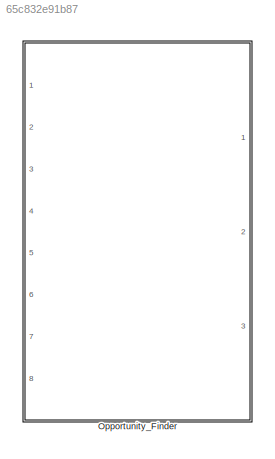
MODEL slx_65c832e91b87
KIND model
CONFIG AbsTol = auto
CONFIG EnableMultiTasking = off
CONFIG FixedStep = 0.001
CONFIG MaxStep = auto
CONFIG MinStep = auto
CONFIG PostLoadFcn = , if any(exist('dsrtsu_mdlpostloadfcn', 'file') == [2, 3, 6]), try dsrtsu_mdlpostloadfcn('Execute', bdroot); catch fprintf('Error in PostLoadFcn (dsrtsu_mdlpostloadfcn) for model "%s":\n %s\n', bdroot, lasterr); end, end, \n
CONFIG RelTol = 1e-3
CONFIG SampleTimeConstraint = Unconstrained
CONFIG Solver = ode1
CONFIG SolverName = ode1
CONFIG StartTime = 0.0
CONFIG StopTime = Inf
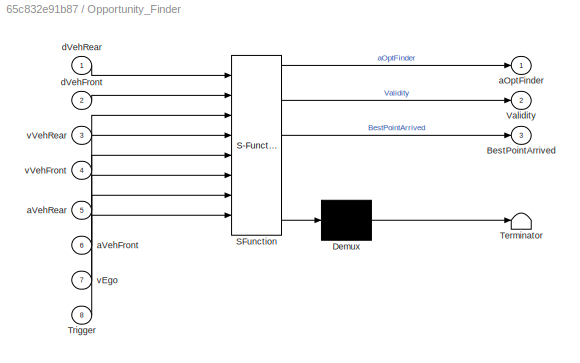
BLOCK [SubSystem] Opportunity_Finder
  ErrorFcn = Stateflow.Translate.translate
  PermitHierarchicalResolution = ExplicitOnly
  Ports = [8, 3]
  RequestExecContextInheritance = off
  SFBlockType = MATLAB Function
  TreatAsAtomicUnit = on
BLOCK [Demux] Opportunity_Finder/ Demux 
  Outputs = 1
  Ports = [1, 1]
BLOCK [S-Function] Opportunity_Finder/ SFunction 
  EnableBusSupport = off
  FunctionName = sf_sfun
  PortCounts = [8 4]
  Ports = [8, 4]
  SFcnIsStateOwnerBlock = off
  SFunctionDeploymentMode = off
  Tag = Stateflow S-Function 3
BLOCK [Terminator] Opportunity_Finder/ Terminator 
BLOCK [Outport] Opportunity_Finder/BestPointArrived
  IconDisplay = Port number
  Port = 3
  VectorParamsAs1DForOutWhenUnconnected = off
BLOCK [Inport] Opportunity_Finder/Trigger
  IconDisplay = Port number
  Port = 8
BLOCK [Outport] Opportunity_Finder/Validity
  IconDisplay = Port number
  Port = 2
  VectorParamsAs1DForOutWhenUnconnected = off
BLOCK [Outport] Opportunity_Finder/aOptFinder
  IconDisplay = Port number
  VectorParamsAs1DForOutWhenUnconnected = off
BLOCK [Inport] Opportunity_Finder/aVehFront
  IconDisplay = Port number
  Port = 6
BLOCK [Inport] Opportunity_Finder/aVehRear
  IconDisplay = Port number
  Port = 5
BLOCK [Inport] Opportunity_Finder/dVehFront
  IconDisplay = Port number
  Port = 2
BLOCK [Inport] Opportunity_Finder/dVehRear
  IconDisplay = Port number
BLOCK [Inport] Opportunity_Finder/vEgo
  IconDisplay = Port number
  Port = 7
BLOCK [Inport] Opportunity_Finder/vVehFront
  IconDisplay = Port number
  Port = 4
BLOCK [Inport] Opportunity_Finder/vVehRear
  IconDisplay = Port number
  Port = 3
CHART Opportunity_Finder states=1 transitions=1
  STATE_LABEL 'eML_blk_kernel()'
  STATE_LABEL 'SCRIPT:\nfunction [aOptFinder,Validity,BestPointArrived] = Opportunity_Finder(dVehRear,dVehFront,vVehRear,vVehFront,aVehRear,aVehFront,vEgo,Trigger)\nif Trigger == 1\n    dt = 0.1;\n    dVehInit = [dVehRear dVehFront]; %[dRear,dFront]\n    vVehInit = [30 vVehFront]; %[vRear,vFront] m/s\n    aVehInit = [aVehRear aVehFront]; %[aRear,aFront]\n    vEgoInit = vEgo;\n    T = 8/2.3;\n    w = [4;1;1;1];\n    i = 1;...<+2022ch>'
